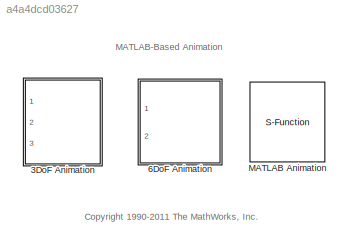
MODEL slx_a4a4dcd03627
KIND library
CONFIG AbsTol = auto
CONFIG FixedStep = auto
CONFIG MaxStep = auto
CONFIG MinStep = auto
CONFIG PostLoadFcn = load_system('aerolibv1')\nsetsysloc('aerolibv1')
CONFIG RelTol = 1e-3
CONFIG SampleTimeConstraint = Unconstrained
CONFIG Solver = ode45
CONFIG SolverMode = SingleTasking
CONFIG SolverName = ode45
CONFIG StartTime = 0.0
CONFIG StopTime = 10.0
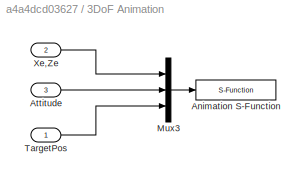
BLOCK [SubSystem] 3DoF Animation
  PermitHierarchicalResolution = ExplicitOnly
  Ports = [3]
  RequestExecContextInheritance = off
  SimViewingDevice = on
  TreatAsAtomicUnit = on
BLOCK [S-Function] 3DoF Animation/Animation S-Function
  FunctionName = saeroanim3dof
  Parameters = Config
  Ports = [1]
BLOCK [Inport] 3DoF Animation/Attitude
  IconDisplay = Port number
  Port = 3
BLOCK [Mux] 3DoF Animation/Mux3
  Inputs = 3
  Ports = [3, 1]
BLOCK [Inport] 3DoF Animation/TargetPos
  IconDisplay = Port number
BLOCK [Inport] 3DoF Animation/Xe,Ze
  IconDisplay = Port number
  Port = 2
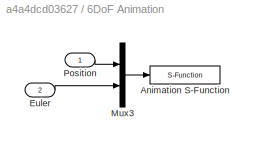
BLOCK [SubSystem] 6DoF Animation
  PermitHierarchicalResolution = ExplicitOnly
  Ports = [2]
  RequestExecContextInheritance = off
  SimViewingDevice = on
  TreatAsAtomicUnit = on
BLOCK [S-Function] 6DoF Animation/Animation S-Function
  FunctionName = sSATanim3
  Parameters = Config
  Ports = [1]
BLOCK [Inport] 6DoF Animation/Euler
  IconDisplay = Port number
  Port = 2
BLOCK [Mux] 6DoF Animation/Mux3
  Inputs = 2
  Ports = [2, 1]
BLOCK [Inport] 6DoF Animation/Position
  IconDisplay = Port number
BLOCK [S-Function] MATLAB Animation
  DeleteFcn = aeroicon('aeroblkMatlabAnimation','delete')
  DestroyFcn = aeroicon('aeroblkMatlabAnimation','delete')
  FunctionName = saeroanim6dof
  LoadFcn = aeroicon('aeroblkMatlabAnimation','load')
  NameChangeFcn = aeroicon('aeroblkMatlabAnimation','namechange')
  OpenFcn = aeroicon('aeroblkMatlabAnimation','open')
  Parameters = Vehicles, SampleTime
  Ports = [2]
  PreSaveFcn = aeroicon('aeroblkMatlabAnimation','presave')
  StartFcn = aeroicon('aeroblkMatlabAnimation','start')
  Tag = Matlab Animation 6 DOF
ANNOTATION (root): <copyright redacted>
ANNOTATION (root): MATLAB-Based Animation
LINE 3DoF Animation/Attitude:1 -> 3DoF Animation/Mux3:2
LINE 3DoF Animation/Mux3:1 -> 3DoF Animation/Animation S-Function:1
LINE 3DoF Animation/TargetPos:1 -> 3DoF Animation/Mux3:3
LINE 3DoF Animation/Xe,Ze:1 -> 3DoF Animation/Mux3:1
LINE 6DoF Animation/Euler:1 -> 6DoF Animation/Mux3:2
LINE 6DoF Animation/Mux3:1 -> 6DoF Animation/Animation S-Function:1
LINE 6DoF Animation/Position:1 -> 6DoF Animation/Mux3:1
